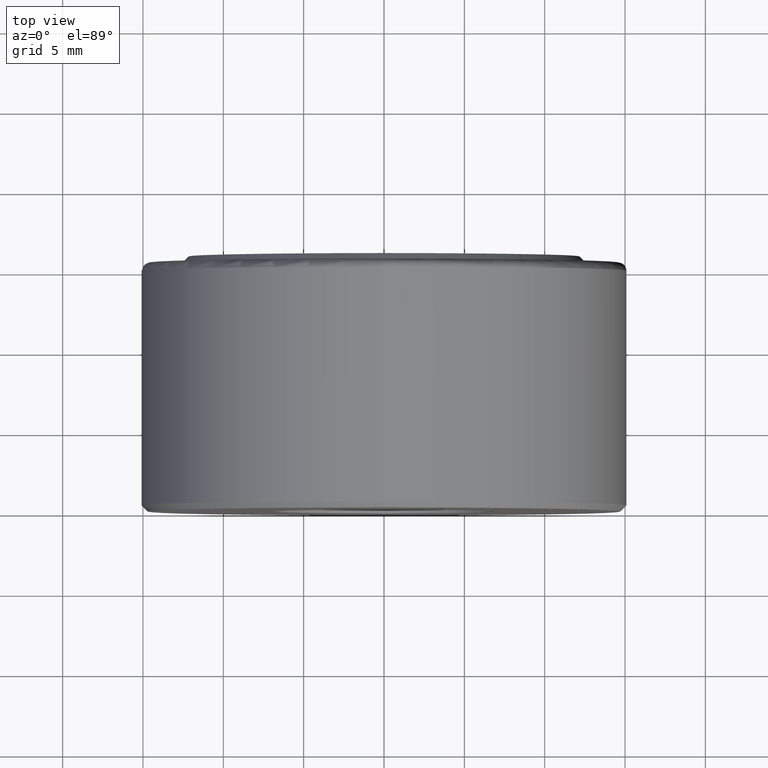
[diagram: clean part render]
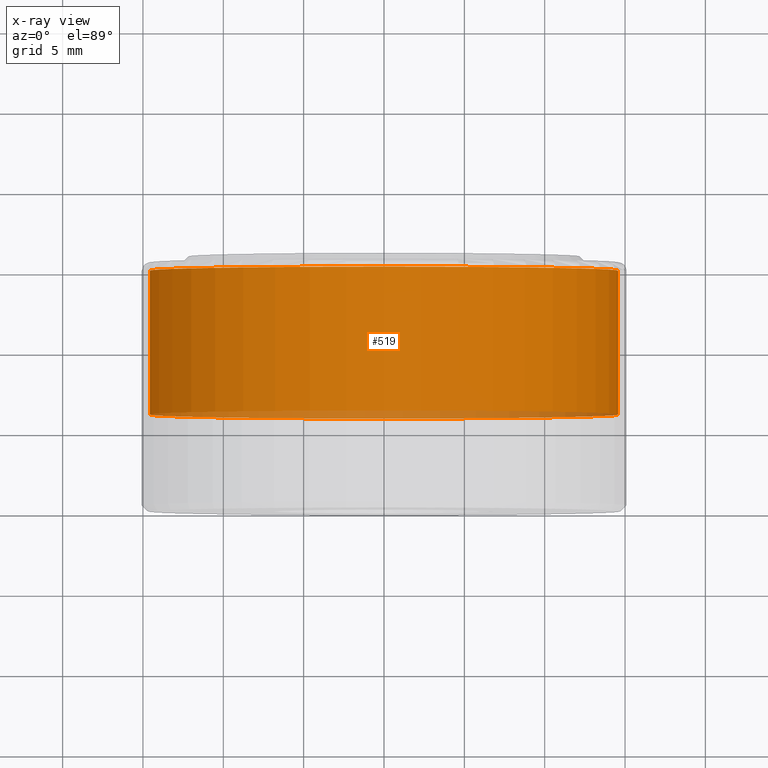
[diagram: x-ray — body ghosted, one internal face saturated and labeled with its STEP entity id]
A machine part, top view, then the same camera in x-ray: the body is ghosted and one INTERNAL B-rep face — a face not visible from any outside direction — is saturated and labeled: STEP entity #519.
In plain terms, the highlighted cylindrical surface (bore or boss wall) has radius 14.5733 mm, axis along (-0, 1, -0).
Its self-contained STEP definition (entity closure, byte-faithful):
#34 = DIRECTION ( 'NONE',  ( 0.0000000000000000000, 0.0000000000000000000, 1.000000000000000000 ) ) ;
#40 = VERTEX_POINT ( 'NONE', #465 ) ;
#56 = DIRECTION ( 'NONE',  ( 0.0000000000000000000, 0.0000000000000000000, 1.000000000000000000 ) ) ;
#104 = FACE_OUTER_BOUND ( 'NONE', #314, .T. ) ;
#109 = ORIENTED_EDGE ( 'NONE', *, *, #577, .T. ) ;
#112 = EDGE_CURVE ( 'NONE', #250, #250, #362, .T. ) ;
#129 = DIRECTION ( 'NONE',  ( -0.0000000000000000000, 1.000000000000000000, -0.0000000000000000000 ) ) ;
#146 = DIRECTION ( 'NONE',  ( -0.0000000000000000000, 1.000000000000000000, -0.0000000000000000000 ) ) ;
#154 = CIRCLE ( 'NONE', #246, 0.5737500000000004300 ) ;
#182 = EDGE_LOOP ( 'NONE', ( #479 ) ) ;
#198 = CARTESIAN_POINT ( 'NONE',  ( 0.0000000000000000000, 0.2375000000000006800, 0.0000000000000000000 ) ) ;
#225 = CARTESIAN_POINT ( 'NONE',  ( 0.0000000000000000000, 0.0000000000000000000, 0.0000000000000000000 ) ) ;
#246 = AXIS2_PLACEMENT_3D ( 'NONE', #368, #129, #500 ) ;
#250 = VERTEX_POINT ( 'NONE', #513 ) ;
#268 = AXIS2_PLACEMENT_3D ( 'NONE', #198, #146, #56 ) ;
#271 = CYLINDRICAL_SURFACE ( 'NONE', #413, 0.5737500000000004300 ) ;
#314 = EDGE_LOOP ( 'NONE', ( #109 ) ) ;
#362 = CIRCLE ( 'NONE', #268, 0.5737500000000004300 ) ;
#368 = CARTESIAN_POINT ( 'NONE',  ( 0.0000000000000000000, 0.5899999999999999700, 0.0000000000000000000 ) ) ;
#413 = AXIS2_PLACEMENT_3D ( 'NONE', #225, #502, #34 ) ;
#465 = CARTESIAN_POINT ( 'NONE',  ( 0.0000000000000000000, 0.5899999999999999700, 0.5737500000000004300 ) ) ;
#479 = ORIENTED_EDGE ( 'NONE', *, *, #112, .F. ) ;
#488 = FACE_OUTER_BOUND ( 'NONE', #182, .T. ) ;
#500 = DIRECTION ( 'NONE',  ( 0.0000000000000000000, 0.0000000000000000000, 1.000000000000000000 ) ) ;
#502 = DIRECTION ( 'NONE',  ( -0.0000000000000000000, 1.000000000000000000, -0.0000000000000000000 ) ) ;
#513 = CARTESIAN_POINT ( 'NONE',  ( 0.0000000000000000000, 0.2375000000000006800, 0.5737500000000004300 ) ) ;
#519 = ADVANCED_FACE ( 'NONE', ( #488, #104 ), #271, .F. ) ;
#577 = EDGE_CURVE ( 'NONE', #40, #40, #154, .T. ) ;